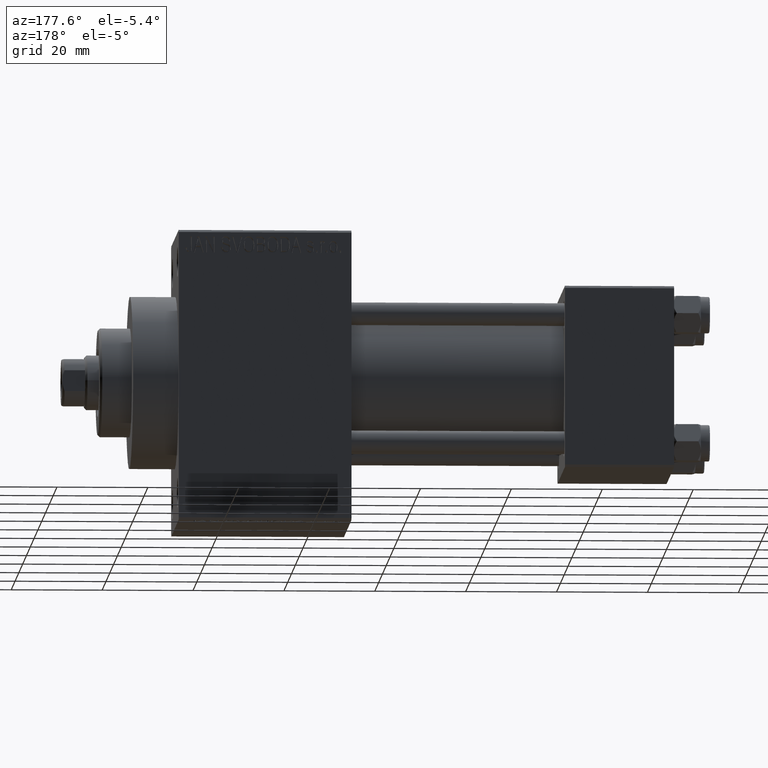
[diagram: clean part render]
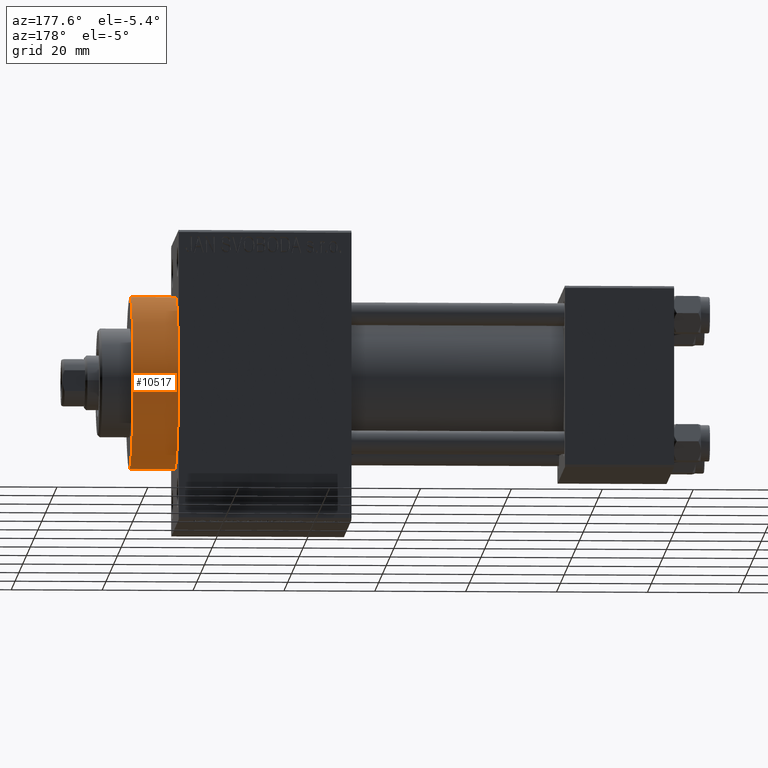
[diagram: same view with one face highlighted and labeled with its STEP entity id]
A machine part, auxiliary view. The second image highlights one B-rep face of the part: STEP entity #10517.
In plain terms, the highlighted cylindrical surface (partial cylindrical patch) has radius 19 mm, axis along (-1, -0, -0).
Its self-contained STEP definition (entity closure, byte-faithful):
#1488 = CARTESIAN_POINT ( 'NONE',  ( 119.0000000000000142, 0.000000000000000000, 19.00000000000000000 ) ) ;
#2032 = EDGE_LOOP ( 'NONE', ( #9237, #4531, #5541, #38439 ) ) ;
#2188 = DIRECTION ( 'NONE',  ( -1.000000000000000000, -0.000000000000000000, -0.000000000000000000 ) ) ;
#3243 = EDGE_CURVE ( 'NONE', #18128, #34826, #22311, .T. ) ;
#3375 = CARTESIAN_POINT ( 'NONE',  ( 119.0000000000000142, 0.000000000000000000, 19.00000000000000000 ) ) ;
#4151 = VERTEX_POINT ( 'NONE', #38135 ) ;
#4418 = CARTESIAN_POINT ( 'NONE',  ( 119.0000000000000142, 2.326828918379970970E-15, -19.00000000000000000 ) ) ;
#4531 = ORIENTED_EDGE ( 'NONE', *, *, #3243, .T. ) ;
#5541 = ORIENTED_EDGE ( 'NONE', *, *, #6344, .T. ) ;
#6344 = EDGE_CURVE ( 'NONE', #34826, #4151, #33670, .T. ) ;
#9237 = ORIENTED_EDGE ( 'NONE', *, *, #39175, .F. ) ;
#9326 = AXIS2_PLACEMENT_3D ( 'NONE', #46809, #38335, #42781 ) ;
#10517 = ADVANCED_FACE ( 'NONE', ( #36086 ), #32279, .T. ) ;
#11374 = VECTOR ( 'NONE', #2188, 1000.000000000000000 ) ;
#14539 = VECTOR ( 'NONE', #44492, 1000.000000000000000 ) ;
#17741 = DIRECTION ( 'NONE',  ( 0.000000000000000000, 0.000000000000000000, -1.000000000000000000 ) ) ;
#18128 = VERTEX_POINT ( 'NONE', #4418 ) ;
#19030 = DIRECTION ( 'NONE',  ( 0.000000000000000000, 0.000000000000000000, -1.000000000000000000 ) ) ;
#20898 = CIRCLE ( 'NONE', #46784, 19.00000000000000000 ) ;
#22215 = CARTESIAN_POINT ( 'NONE',  ( 109.0000000000000142, 0.000000000000000000, 0.000000000000000000 ) ) ;
#22311 = LINE ( 'NONE', #34006, #14539 ) ;
#22439 = EDGE_CURVE ( 'NONE', #46956, #4151, #45531, .T. ) ;
#24025 = CARTESIAN_POINT ( 'NONE',  ( 109.0000000000000142, 2.326828918379970970E-15, -19.00000000000000000 ) ) ;
#25792 = DIRECTION ( 'NONE',  ( 1.000000000000000000, 0.000000000000000000, 0.000000000000000000 ) ) ;
#29996 = CARTESIAN_POINT ( 'NONE',  ( 119.0000000000000142, 0.000000000000000000, 0.000000000000000000 ) ) ;
#32279 = CYLINDRICAL_SURFACE ( 'NONE', #9326, 19.00000000000000000 ) ;
#33670 = CIRCLE ( 'NONE', #45876, 19.00000000000000000 ) ;
#34006 = CARTESIAN_POINT ( 'NONE',  ( 119.0000000000000142, 2.326828918379970970E-15, -19.00000000000000000 ) ) ;
#34826 = VERTEX_POINT ( 'NONE', #24025 ) ;
#36086 = FACE_OUTER_BOUND ( 'NONE', #2032, .T. ) ;
#38135 = CARTESIAN_POINT ( 'NONE',  ( 109.0000000000000142, 0.000000000000000000, 19.00000000000000000 ) ) ;
#38335 = DIRECTION ( 'NONE',  ( -1.000000000000000000, -0.000000000000000000, -0.000000000000000000 ) ) ;
#38439 = ORIENTED_EDGE ( 'NONE', *, *, #22439, .F. ) ;
#39175 = EDGE_CURVE ( 'NONE', #18128, #46956, #20898, .T. ) ;
#41680 = DIRECTION ( 'NONE',  ( 1.000000000000000000, 0.000000000000000000, 0.000000000000000000 ) ) ;
#42781 = DIRECTION ( 'NONE',  ( 0.000000000000000000, 0.000000000000000000, 1.000000000000000000 ) ) ;
#44492 = DIRECTION ( 'NONE',  ( -1.000000000000000000, -0.000000000000000000, -0.000000000000000000 ) ) ;
#45531 = LINE ( 'NONE', #1488, #11374 ) ;
#45876 = AXIS2_PLACEMENT_3D ( 'NONE', #22215, #25792, #17741 ) ;
#46784 = AXIS2_PLACEMENT_3D ( 'NONE', #29996, #41680, #19030 ) ;
#46809 = CARTESIAN_POINT ( 'NONE',  ( 119.0000000000000142, 0.000000000000000000, 0.000000000000000000 ) ) ;
#46956 = VERTEX_POINT ( 'NONE', #3375 ) ;